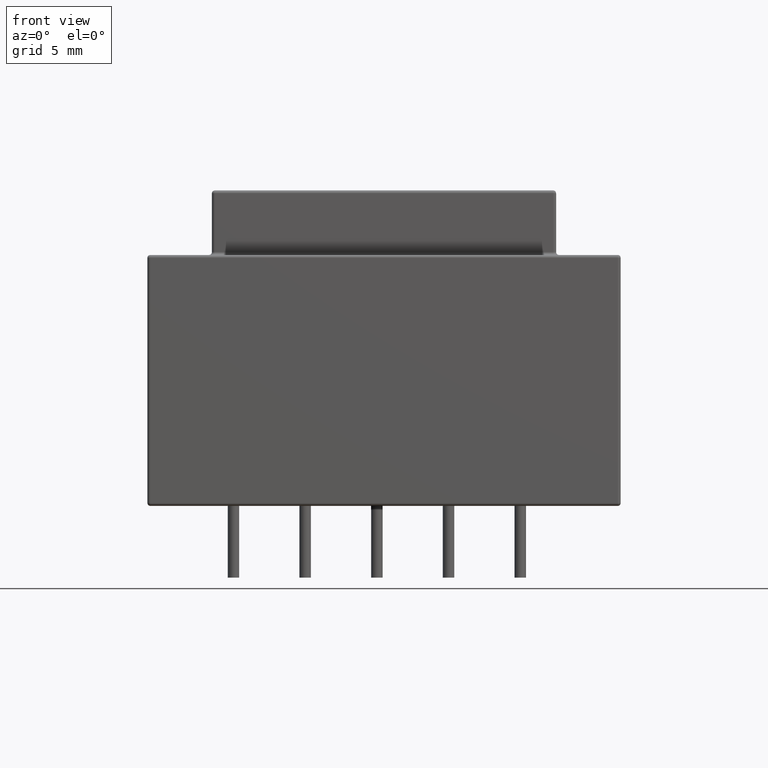
[diagram: clean part render]
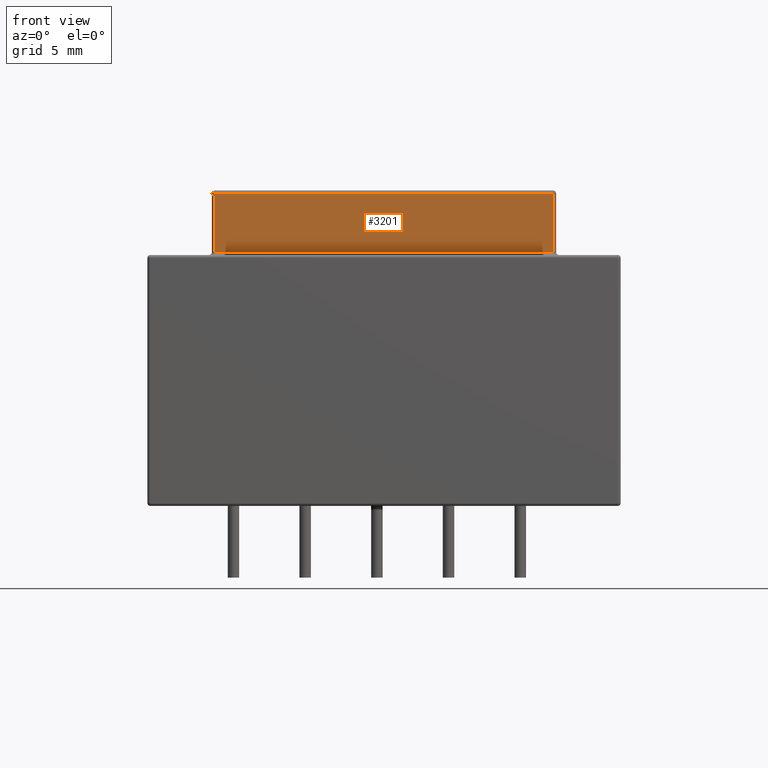
[diagram: same view with one face highlighted and labeled with its STEP entity id]
A machine part, front view. The second image highlights one B-rep face of the part: STEP entity #3201.
In plain terms, the highlighted planar face has unit normal (0, 1, 0).
Its self-contained STEP definition (entity closure, byte-faithful):
#2256 = CYLINDRICAL_SURFACE('',#2257,0.2);
#2257 = AXIS2_PLACEMENT_3D('',#2258,#2259,#2260);
#2258 = CARTESIAN_POINT('',(4.5,4.3,17.7));
#2259 = DIRECTION('',(1.,0.,0.));
#2260 = DIRECTION('',(0.,0.,-1.));
#2664 = VERTEX_POINT('',#2665);
#2665 = CARTESIAN_POINT('',(4.7,4.5,17.7));
#2700 = CYLINDRICAL_SURFACE('',#2701,0.2);
#2701 = AXIS2_PLACEMENT_3D('',#2702,#2703,#2704);
#2702 = CARTESIAN_POINT('',(4.7,4.7,17.5));
#2703 = DIRECTION('',(0.,0.,1.));
#2704 = DIRECTION('',(-1.,0.,0.));
#2718 = VERTEX_POINT('',#2719);
#2719 = CARTESIAN_POINT('',(28.3,4.5,17.7));
#2754 = CYLINDRICAL_SURFACE('',#2755,0.2);
#2755 = AXIS2_PLACEMENT_3D('',#2756,#2757,#2758);
#2756 = CARTESIAN_POINT('',(28.3,4.7,17.5));
#2757 = DIRECTION('',(0.,0.,1.));
#2758 = DIRECTION('',(1.,0.,0.));
#2770 = EDGE_CURVE('',#2664,#2718,#2771,.T.);
#2771 = SURFACE_CURVE('',#2772,(#2776,#2783),.PCURVE_S1.);
#2772 = LINE('',#2773,#2774);
#2773 = CARTESIAN_POINT('',(4.5,4.5,17.7));
#2774 = VECTOR('',#2775,1.);
#2775 = DIRECTION('',(1.,0.,0.));
#2776 = PCURVE('',#2256,#2777);
#2777 = DEFINITIONAL_REPRESENTATION('',(#2778),#2782);
#2778 = LINE('',#2779,#2780);
#2779 = CARTESIAN_POINT('',(1.570796326795,0.));
#2780 = VECTOR('',#2781,1.);
#2781 = DIRECTION('',(0.,1.));
#2782 = ( GEOMETRIC_REPRESENTATION_CONTEXT(2) 
PARAMETRIC_REPRESENTATION_CONTEXT() REPRESENTATION_CONTEXT('2D SPACE',''
  ) );
#2783 = PCURVE('',#2784,#2789);
#2784 = PLANE('',#2785);
#2785 = AXIS2_PLACEMENT_3D('',#2786,#2787,#2788);
#2786 = CARTESIAN_POINT('',(4.5,4.5,17.5));
#2787 = DIRECTION('',(0.,1.,0.));
#2788 = DIRECTION('',(0.,0.,1.));
#2789 = DEFINITIONAL_REPRESENTATION('',(#2790),#2794);
#2790 = LINE('',#2791,#2792);
#2791 = CARTESIAN_POINT('',(0.2,0.));
#2792 = VECTOR('',#2793,1.);
#2793 = DIRECTION('',(0.,1.));
#2794 = ( GEOMETRIC_REPRESENTATION_CONTEXT(2) 
PARAMETRIC_REPRESENTATION_CONTEXT() REPRESENTATION_CONTEXT('2D SPACE',''
  ) );
#3097 = EDGE_CURVE('',#2664,#3098,#3100,.T.);
#3098 = VERTEX_POINT('',#3099);
#3099 = CARTESIAN_POINT('',(4.7,4.5,21.8));
#3100 = SURFACE_CURVE('',#3101,(#3105,#3112),.PCURVE_S1.);
#3101 = LINE('',#3102,#3103);
#3102 = CARTESIAN_POINT('',(4.7,4.5,17.5));
#3103 = VECTOR('',#3104,1.);
#3104 = DIRECTION('',(0.,0.,1.));
#3105 = PCURVE('',#2700,#3106);
#3106 = DEFINITIONAL_REPRESENTATION('',(#3107),#3111);
#3107 = LINE('',#3108,#3109);
#3108 = CARTESIAN_POINT('',(1.570796326795,0.));
#3109 = VECTOR('',#3110,1.);
#3110 = DIRECTION('',(0.,1.));
#3111 = ( GEOMETRIC_REPRESENTATION_CONTEXT(2) 
PARAMETRIC_REPRESENTATION_CONTEXT() REPRESENTATION_CONTEXT('2D SPACE',''
  ) );
#3112 = PCURVE('',#2784,#3113);
#3113 = DEFINITIONAL_REPRESENTATION('',(#3114),#3118);
#3114 = LINE('',#3115,#3116);
#3115 = CARTESIAN_POINT('',(0.,0.2));
#3116 = VECTOR('',#3117,1.);
#3117 = DIRECTION('',(1.,0.));
#3118 = ( GEOMETRIC_REPRESENTATION_CONTEXT(2) 
PARAMETRIC_REPRESENTATION_CONTEXT() REPRESENTATION_CONTEXT('2D SPACE',''
  ) );
#3152 = EDGE_CURVE('',#2718,#3153,#3155,.T.);
#3153 = VERTEX_POINT('',#3154);
#3154 = CARTESIAN_POINT('',(28.3,4.5,21.8));
#3155 = SURFACE_CURVE('',#3156,(#3160,#3167),.PCURVE_S1.);
#3156 = LINE('',#3157,#3158);
#3157 = CARTESIAN_POINT('',(28.3,4.5,17.5));
#3158 = VECTOR('',#3159,1.);
#3159 = DIRECTION('',(0.,0.,1.));
#3160 = PCURVE('',#2754,#3161);
#3161 = DEFINITIONAL_REPRESENTATION('',(#3162),#3166);
#3162 = LINE('',#3163,#3164);
#3163 = CARTESIAN_POINT('',(-1.570796326795,0.));
#3164 = VECTOR('',#3165,1.);
#3165 = DIRECTION('',(-0.,1.));
#3166 = ( GEOMETRIC_REPRESENTATION_CONTEXT(2) 
PARAMETRIC_REPRESENTATION_CONTEXT() REPRESENTATION_CONTEXT('2D SPACE',''
  ) );
#3167 = PCURVE('',#2784,#3168);
#3168 = DEFINITIONAL_REPRESENTATION('',(#3169),#3173);
#3169 = LINE('',#3170,#3171);
#3170 = CARTESIAN_POINT('',(0.,23.8));
#3171 = VECTOR('',#3172,1.);
#3172 = DIRECTION('',(1.,0.));
#3173 = ( GEOMETRIC_REPRESENTATION_CONTEXT(2) 
PARAMETRIC_REPRESENTATION_CONTEXT() REPRESENTATION_CONTEXT('2D SPACE',''
  ) );
#3201 = ADVANCED_FACE('',(#3202),#2784,.F.);
#3202 = FACE_BOUND('',#3203,.F.);
#3203 = EDGE_LOOP('',(#3204,#3205,#3206,#3232));
#3204 = ORIENTED_EDGE('',*,*,#2770,.F.);
#3205 = ORIENTED_EDGE('',*,*,#3097,.T.);
#3206 = ORIENTED_EDGE('',*,*,#3207,.T.);
#3207 = EDGE_CURVE('',#3098,#3153,#3208,.T.);
#3208 = SURFACE_CURVE('',#3209,(#3213,#3220),.PCURVE_S1.);
#3209 = LINE('',#3210,#3211);
#3210 = CARTESIAN_POINT('',(4.5,4.5,21.8));
#3211 = VECTOR('',#3212,1.);
#3212 = DIRECTION('',(1.,0.,0.));
#3213 = PCURVE('',#2784,#3214);
#3214 = DEFINITIONAL_REPRESENTATION('',(#3215),#3219);
#3215 = LINE('',#3216,#3217);
#3216 = CARTESIAN_POINT('',(4.3,0.));
#3217 = VECTOR('',#3218,1.);
#3218 = DIRECTION('',(0.,1.));
#3219 = ( GEOMETRIC_REPRESENTATION_CONTEXT(2) 
PARAMETRIC_REPRESENTATION_CONTEXT() REPRESENTATION_CONTEXT('2D SPACE',''
  ) );
#3220 = PCURVE('',#3221,#3226);
#3221 = CYLINDRICAL_SURFACE('',#3222,0.2);
#3222 = AXIS2_PLACEMENT_3D('',#3223,#3224,#3225);
#3223 = CARTESIAN_POINT('',(4.5,4.7,21.8));
#3224 = DIRECTION('',(1.,0.,0.));
#3225 = DIRECTION('',(0.,-1.,0.));
#3226 = DEFINITIONAL_REPRESENTATION('',(#3227),#3231);
#3227 = LINE('',#3228,#3229);
#3228 = CARTESIAN_POINT('',(-0.,0.));
#3229 = VECTOR('',#3230,1.);
#3230 = DIRECTION('',(-0.,1.));
#3231 = ( GEOMETRIC_REPRESENTATION_CONTEXT(2) 
PARAMETRIC_REPRESENTATION_CONTEXT() REPRESENTATION_CONTEXT('2D SPACE',''
  ) );
#3232 = ORIENTED_EDGE('',*,*,#3152,.F.);